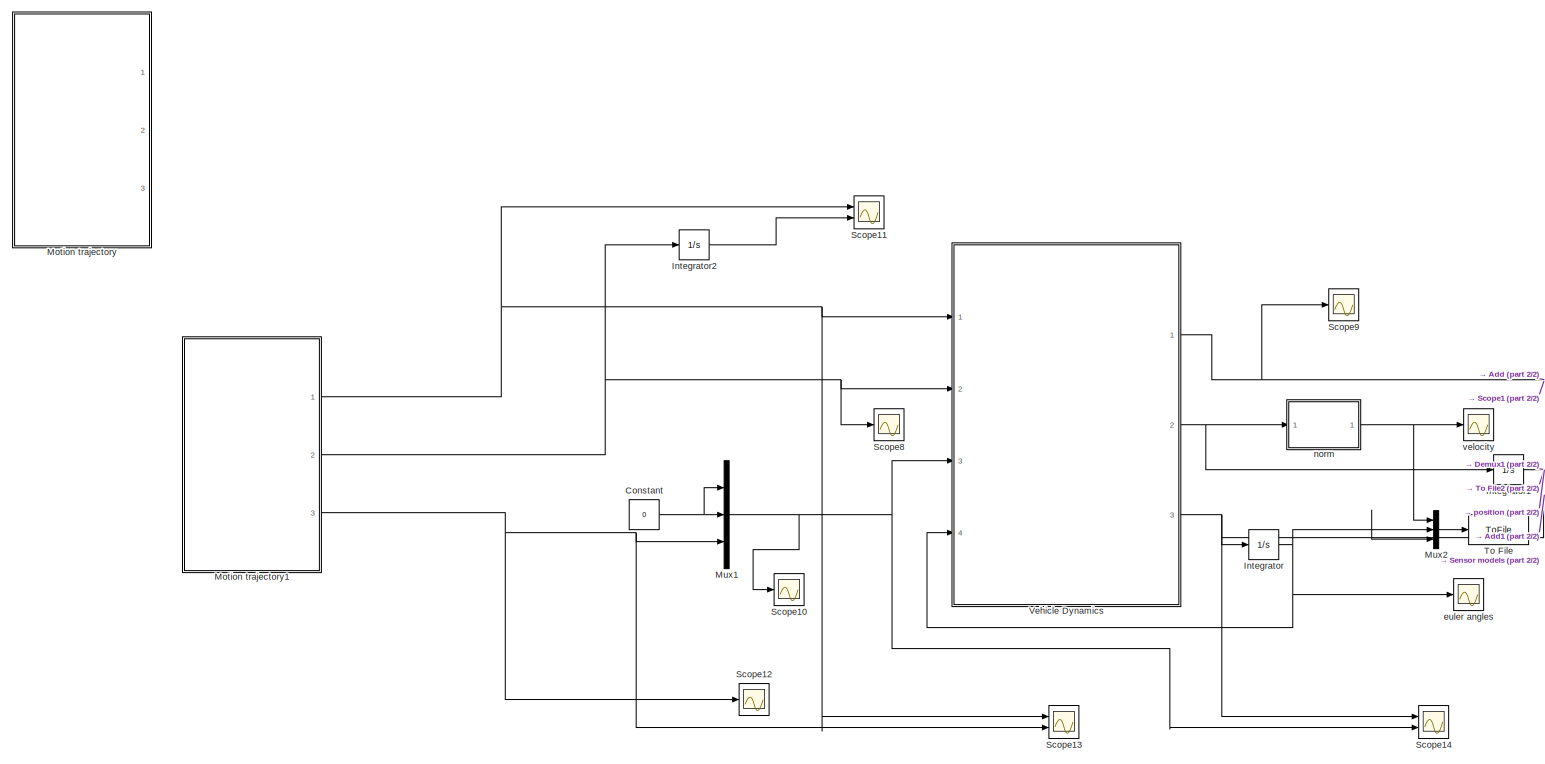
[diagram: root canvas - part 1/2, left side, full height]
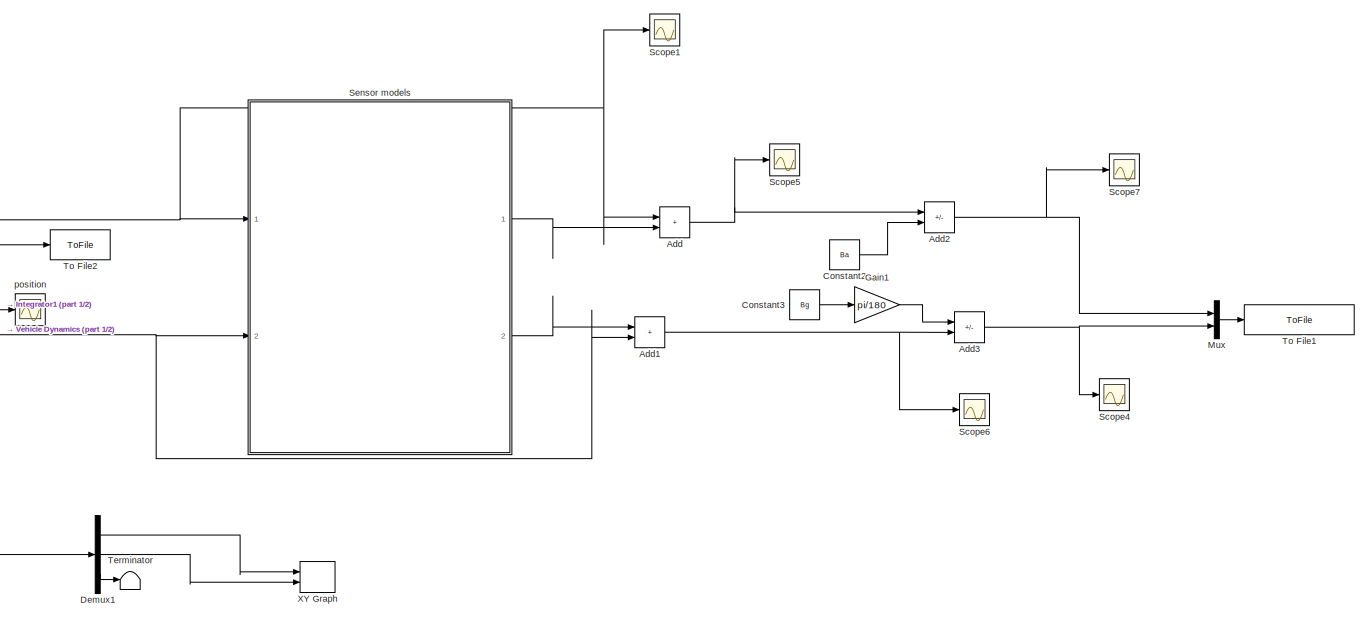
[diagram: root canvas - part 2/2, right side, full height]
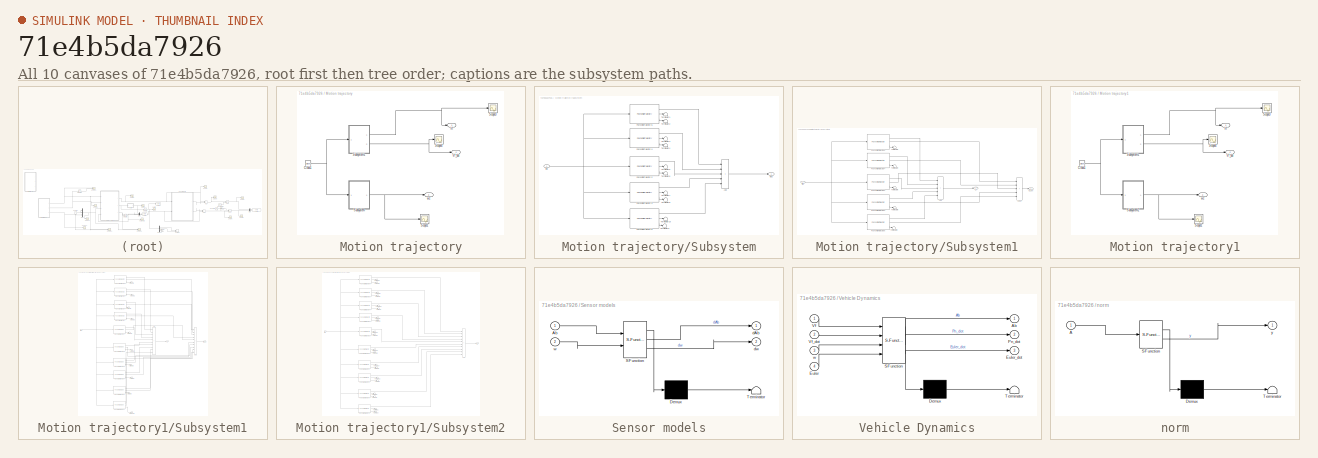
[diagram: thumbnail index - all 10 canvases of the model, root first then tree order]
MODEL slx_71e4b5da7926
KIND model
CONFIG AbsTol = auto
CONFIG EnableMultiTasking = off
CONFIG FixedStep = 1e-2
CONFIG MaxStep = 1e-1
CONFIG MinStep = auto
CONFIG RelTol = 1e-2
CONFIG SampleTimeConstraint = Unconstrained
CONFIG SolverName = FixedStepAuto
CONFIG StartTime = 0.0
CONFIG StopTime = 200
BLOCK [Sum] Add
  IconShape = rectangular
  Ports = [2, 1]
BLOCK [Sum] Add1
  IconShape = rectangular
  Ports = [2, 1]
BLOCK [Sum] Add2
  IconShape = rectangular
  Inputs = +-
  Ports = [2, 1]
BLOCK [Sum] Add3
  IconShape = rectangular
  Inputs = -+
  Ports = [2, 1]
BLOCK [Constant] Constant
  Value = 0
BLOCK [Constant] Constant2
  Value = Ba
BLOCK [Constant] Constant3
  Value = Bg
BLOCK [Demux] Demux1
  Outputs = 3
  Ports = [1, 3]
BLOCK [Gain] Gain1
  Gain = pi/180
BLOCK [Integrator] Integrator
  InitialCondition = [0 0 pi/2]'
  Ports = [1, 1]
BLOCK [Integrator] Integrator1
  InitialCondition = [0 0 0]'
  Ports = [1, 1]
BLOCK [Integrator] Integrator2
  Ports = [1, 1]
BLOCK [SubSystem] Motion trajectory
  Commented = on
  Ports = [0, 3]
  RequestExecContextInheritance = off
BLOCK [Clock] Motion trajectory/Clock1
BLOCK [Scope] Motion trajectory/Scope1
  Floating = off
  NumInputPorts = 1
  Ports = [1]
  ScopeSpecificationString = Simulink.scopes.TimeScopeBlockCfg('CurrentConfiguration', extmgr.ConfigurationSet(extmgr.Configuration('Core','General UI',true),extmgr.Configuration('Core','Source UI',true),extmgr.Configuration('Sources','WiredSimulink',true,'DataLoggingVariableName','ScopeData1'),extmgr.Configuration('Visuals','Time Domain',true,'SerializedDisplays',{struct('MinYLimReal','-0.58333','MaxYLimReal','0.58333','YLab...<+1486ch>
BLOCK [Scope] Motion trajectory/Scope3
  Floating = off
  NumInputPorts = 1
  Ports = [1]
  ScopeSpecificationString = Simulink.scopes.TimeScopeBlockCfg('CurrentConfiguration', extmgr.ConfigurationSet(extmgr.Configuration('Core','General UI',true),extmgr.Configuration('Core','Source UI',true),extmgr.Configuration('Sources','WiredSimulink',true,'DataLoggingVariableName','ScopeData1'),extmgr.Configuration('Visuals','Time Domain',true,'SerializedDisplays',{struct('MinYLimReal','-0.07997','MaxYLimReal','0.11207','YLab...<+1489ch>
BLOCK [Scope] Motion trajectory/Scope4
  Floating = off
  NumInputPorts = 1
  Ports = [1]
  ScopeSpecificationString = Simulink.scopes.TimeScopeBlockCfg('CurrentConfiguration', extmgr.ConfigurationSet(extmgr.Configuration('Core','General UI',true),extmgr.Configuration('Core','Source UI',true),extmgr.Configuration('Sources','WiredSimulink',true,'DataLoggingVariableName','ScopeData2'),extmgr.Configuration('Visuals','Time Domain',true,'SerializedDisplays',{struct('MinYLimReal','-3.44501','MaxYLimReal','3.58278','YLab...<+1501ch>
BLOCK [SubSystem] Motion trajectory/Subsystem
  Ports = [1, 1]
  RequestExecContextInheritance = off
BLOCK [Sum] Motion trajectory/Subsystem/Add
  IconShape = rectangular
  Inputs = +++++
  Ports = [5, 1]
BLOCK [Reference] Motion trajectory/Subsystem/Polynomial Trajectory2  REF=robotcorelib/Polynomial Trajectory
  Ports = [1, 3]
  SourceBlock = robotcorelib/Polynomial Trajectory
  SourceProductBaseCode = NV,RO,RR,UV
  SourceType = robotics.slcore.internal.block.PolyTrajSys
BLOCK [Reference] Motion trajectory/Subsystem/Polynomial Trajectory3  REF=robotcorelib/Polynomial Trajectory
  Ports = [1, 3]
  SourceBlock = robotcorelib/Polynomial Trajectory
  SourceProductBaseCode = NV,RO,RR,UV
  SourceType = robotics.slcore.internal.block.PolyTrajSys
BLOCK [Reference] Motion trajectory/Subsystem/Polynomial Trajectory4  REF=robotcorelib/Polynomial Trajectory
  Ports = [1, 3]
  SourceBlock = robotcorelib/Polynomial Trajectory
  SourceProductBaseCode = NV,RO,RR,UV
  SourceType = robotics.slcore.internal.block.PolyTrajSys
BLOCK [Reference] Motion trajectory/Subsystem/Polynomial Trajectory5  REF=robotcorelib/Polynomial Trajectory
  Ports = [1, 3]
  SourceBlock = robotcorelib/Polynomial Trajectory
  SourceProductBaseCode = NV,RO,RR,UV
  SourceType = robotics.slcore.internal.block.PolyTrajSys
BLOCK [Reference] Motion trajectory/Subsystem/Polynomial Trajectory6  REF=robotcorelib/Polynomial Trajectory
  Ports = [1, 3]
  SourceBlock = robotcorelib/Polynomial Trajectory
  SourceProductBaseCode = NV,RO,RR,UV
  SourceType = robotics.slcore.internal.block.PolyTrajSys
BLOCK [Terminator] Motion trajectory/Subsystem/Terminator1
BLOCK [Terminator] Motion trajectory/Subsystem/Terminator10
BLOCK [Terminator] Motion trajectory/Subsystem/Terminator2
BLOCK [Terminator] Motion trajectory/Subsystem/Terminator3
BLOCK [Terminator] Motion trajectory/Subsystem/Terminator4
BLOCK [Terminator] Motion trajectory/Subsystem/Terminator5
BLOCK [Terminator] Motion trajectory/Subsystem/Terminator6
BLOCK [Terminator] Motion trajectory/Subsystem/Terminator7
BLOCK [Terminator] Motion trajectory/Subsystem/Terminator8
BLOCK [Terminator] Motion trajectory/Subsystem/Terminator9
BLOCK [Inport] Motion trajectory/Subsystem/time
BLOCK [Outport] Motion trajectory/Subsystem/wbz
BLOCK [SubSystem] Motion trajectory/Subsystem1
  Ports = [1, 2]
  RequestExecContextInheritance = off
BLOCK [Sum] Motion trajectory/Subsystem1/Add
  IconShape = rectangular
  Inputs = +++++
  Ports = [5, 1]
BLOCK [Sum] Motion trajectory/Subsystem1/Add1
  IconShape = rectangular
  Inputs = +++++
  Ports = [5, 1]
BLOCK [Reference] Motion trajectory/Subsystem1/Polynomial Trajectory2  REF=robotcorelib/Polynomial Trajectory
  Ports = [1, 3]
  SourceBlock = robotcorelib/Polynomial Trajectory
  SourceProductBaseCode = NV,RO,RR,UV
  SourceType = robotics.slcore.internal.block.PolyTrajSys
BLOCK [Reference] Motion trajectory/Subsystem1/Polynomial Trajectory3  REF=robotcorelib/Polynomial Trajectory
  Ports = [1, 3]
  SourceBlock = robotcorelib/Polynomial Trajectory
  SourceProductBaseCode = NV,RO,RR,UV
  SourceType = robotics.slcore.internal.block.PolyTrajSys
BLOCK [Reference] Motion trajectory/Subsystem1/Polynomial Trajectory4  REF=robotcorelib/Polynomial Trajectory
  Ports = [1, 3]
  SourceBlock = robotcorelib/Polynomial Trajectory
  SourceProductBaseCode = NV,RO,RR,UV
  SourceType = robotics.slcore.internal.block.PolyTrajSys
BLOCK [Reference] Motion trajectory/Subsystem1/Polynomial Trajectory5  REF=robotcorelib/Polynomial Trajectory
  Ports = [1, 3]
  SourceBlock = robotcorelib/Polynomial Trajectory
  SourceProductBaseCode = NV,RO,RR,UV
  SourceType = robotics.slcore.internal.block.PolyTrajSys
BLOCK [Reference] Motion trajectory/Subsystem1/Polynomial Trajectory6  REF=robotcorelib/Polynomial Trajectory
  Ports = [1, 3]
  SourceBlock = robotcorelib/Polynomial Trajectory
  SourceProductBaseCode = NV,RO,RR,UV
  SourceType = robotics.slcore.internal.block.PolyTrajSys
BLOCK [Terminator] Motion trajectory/Subsystem1/Terminator2
BLOCK [Terminator] Motion trajectory/Subsystem1/Terminator4
BLOCK [Terminator] Motion trajectory/Subsystem1/Terminator6
BLOCK [Terminator] Motion trajectory/Subsystem1/Terminator8
BLOCK [Terminator] Motion trajectory/Subsystem1/Terminator9
BLOCK [Outport] Motion trajectory/Subsystem1/Vf
BLOCK [Outport] Motion trajectory/Subsystem1/Vf_dot
  Port = 2
BLOCK [Inport] Motion trajectory/Subsystem1/time
BLOCK [Outport] Motion trajectory/Vf
BLOCK [Outport] Motion trajectory/Vf_dot
  Port = 2
BLOCK [Outport] Motion trajectory/wz
  Port = 3
BLOCK [SubSystem] Motion trajectory1
  Ports = [0, 3]
  RequestExecContextInheritance = off
BLOCK [Clock] Motion trajectory1/Clock1
BLOCK [Scope] Motion trajectory1/Scope1
  Floating = off
  NumInputPorts = 1
  Ports = [1]
  ScopeSpecificationString = Simulink.scopes.TimeScopeBlockCfg('CurrentConfiguration', extmgr.ConfigurationSet(extmgr.Configuration('Core','General UI',true),extmgr.Configuration('Core','Source UI',true),extmgr.Configuration('Sources','WiredSimulink',true,'DataLoggingVariableName','ScopeData1'),extmgr.Configuration('Visuals','Time Domain',true,'SerializedDisplays',{struct('MinYLimReal','-0.58333','MaxYLimReal','0.58333','YLab...<+1486ch>
BLOCK [Scope] Motion trajectory1/Scope3
  Floating = off
  NumInputPorts = 1
  Ports = [1]
  ScopeSpecificationString = Simulink.scopes.TimeScopeBlockCfg('CurrentConfiguration', extmgr.ConfigurationSet(extmgr.Configuration('Core','General UI',true),extmgr.Configuration('Core','Source UI',true),extmgr.Configuration('Sources','WiredSimulink',true,'DataLoggingVariableName','ScopeData1'),extmgr.Configuration('Visuals','Time Domain',true,'SerializedDisplays',{struct('MinYLimReal','-1.01629','MaxYLimReal','9.14659','YLab...<+1489ch>
BLOCK [Scope] Motion trajectory1/Scope4
  Floating = off
  NumInputPorts = 1
  Ports = [1]
  ScopeSpecificationString = Simulink.scopes.TimeScopeBlockCfg('CurrentConfiguration', extmgr.ConfigurationSet(extmgr.Configuration('Core','General UI',true),extmgr.Configuration('Core','Source UI',true),extmgr.Configuration('Sources','WiredSimulink',true,'DataLoggingVariableName','ScopeData2'),extmgr.Configuration('Visuals','Time Domain',true,'SerializedDisplays',{struct('MinYLimReal','-3.44501','MaxYLimReal','3.58278','YLab...<+1501ch>
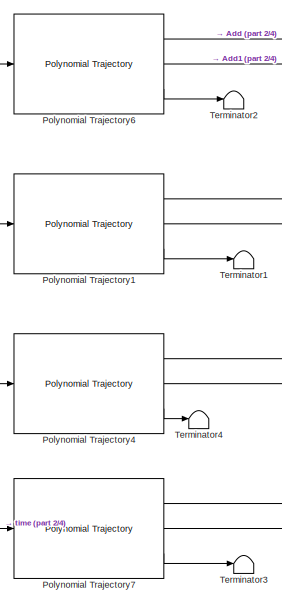
[diagram: Motion trajectory1/Subsystem1 - part 1/4, top center region]
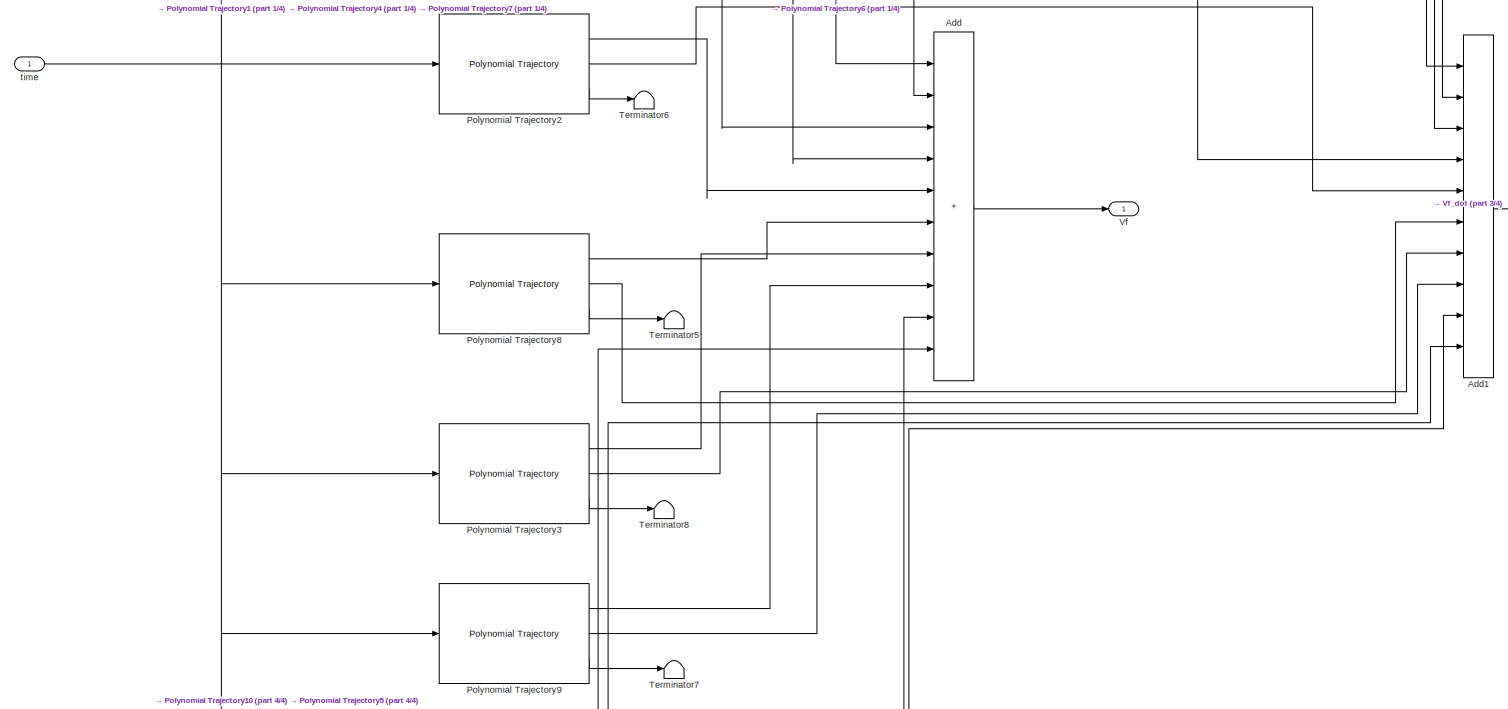
[diagram: Motion trajectory1/Subsystem1 - part 2/4, full width, middle band]
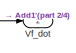
[diagram: Motion trajectory1/Subsystem1 - part 3/4, middle right region]
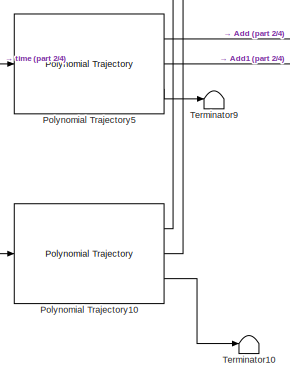
[diagram: Motion trajectory1/Subsystem1 - part 4/4, bottom center region]
BLOCK [SubSystem] Motion trajectory1/Subsystem1
  Ports = [1, 2]
  RequestExecContextInheritance = off
BLOCK [Sum] Motion trajectory1/Subsystem1/Add
  IconShape = rectangular
  Inputs = ++++++++++
  Ports = [10, 1]
BLOCK [Sum] Motion trajectory1/Subsystem1/Add1
  IconShape = rectangular
  Inputs = ++++++++++
  Ports = [10, 1]
BLOCK [Reference] Motion trajectory1/Subsystem1/Polynomial Trajectory1  REF=robotcorelib/Polynomial Trajectory
  Ports = [1, 3]
  SourceBlock = robotcorelib/Polynomial Trajectory
  SourceProductBaseCode = NV,RO,RR,UV
  SourceType = robotics.slcore.internal.block.PolyTrajSys
BLOCK [Reference] Motion trajectory1/Subsystem1/Polynomial Trajectory10  REF=robotcorelib/Polynomial Trajectory
  Ports = [1, 3]
  SourceBlock = robotcorelib/Polynomial Trajectory
  SourceProductBaseCode = NV,RO,RR,UV
  SourceType = robotics.slcore.internal.block.PolyTrajSys
BLOCK [Reference] Motion trajectory1/Subsystem1/Polynomial Trajectory2  REF=robotcorelib/Polynomial Trajectory
  Ports = [1, 3]
  SourceBlock = robotcorelib/Polynomial Trajectory
  SourceProductBaseCode = NV,RO,RR,UV
  SourceType = robotics.slcore.internal.block.PolyTrajSys
BLOCK [Reference] Motion trajectory1/Subsystem1/Polynomial Trajectory3  REF=robotcorelib/Polynomial Trajectory
  Ports = [1, 3]
  SourceBlock = robotcorelib/Polynomial Trajectory
  SourceProductBaseCode = NV,RO,RR,UV
  SourceType = robotics.slcore.internal.block.PolyTrajSys
BLOCK [Reference] Motion trajectory1/Subsystem1/Polynomial Trajectory4  REF=robotcorelib/Polynomial Trajectory
  Ports = [1, 3]
  SourceBlock = robotcorelib/Polynomial Trajectory
  SourceProductBaseCode = NV,RO,RR,UV
  SourceType = robotics.slcore.internal.block.PolyTrajSys
BLOCK [Reference] Motion trajectory1/Subsystem1/Polynomial Trajectory5  REF=robotcorelib/Polynomial Trajectory
  Ports = [1, 3]
  SourceBlock = robotcorelib/Polynomial Trajectory
  SourceProductBaseCode = NV,RO,RR,UV
  SourceType = robotics.slcore.internal.block.PolyTrajSys
BLOCK [Reference] Motion trajectory1/Subsystem1/Polynomial Trajectory6  REF=robotcorelib/Polynomial Trajectory
  Ports = [1, 3]
  SourceBlock = robotcorelib/Polynomial Trajectory
  SourceProductBaseCode = NV,RO,RR,UV
  SourceType = robotics.slcore.internal.block.PolyTrajSys
BLOCK [Reference] Motion trajectory1/Subsystem1/Polynomial Trajectory7  REF=robotcorelib/Polynomial Trajectory
  Ports = [1, 3]
  SourceBlock = robotcorelib/Polynomial Trajectory
  SourceProductBaseCode = NV,RO,RR,UV
  SourceType = robotics.slcore.internal.block.PolyTrajSys
BLOCK [Reference] Motion trajectory1/Subsystem1/Polynomial Trajectory8  REF=robotcorelib/Polynomial Trajectory
  Ports = [1, 3]
  SourceBlock = robotcorelib/Polynomial Trajectory
  SourceProductBaseCode = NV,RO,RR,UV
  SourceType = robotics.slcore.internal.block.PolyTrajSys
BLOCK [Reference] Motion trajectory1/Subsystem1/Polynomial Trajectory9  REF=robotcorelib/Polynomial Trajectory
  Ports = [1, 3]
  SourceBlock = robotcorelib/Polynomial Trajectory
  SourceProductBaseCode = NV,RO,RR,UV
  SourceType = robotics.slcore.internal.block.PolyTrajSys
BLOCK [Terminator] Motion trajectory1/Subsystem1/Terminator1
BLOCK [Terminator] Motion trajectory1/Subsystem1/Terminator10
BLOCK [Terminator] Motion trajectory1/Subsystem1/Terminator2
BLOCK [Terminator] Motion trajectory1/Subsystem1/Terminator3
BLOCK [Terminator] Motion trajectory1/Subsystem1/Terminator4
BLOCK [Terminator] Motion trajectory1/Subsystem1/Terminator5
BLOCK [Terminator] Motion trajectory1/Subsystem1/Terminator6
BLOCK [Terminator] Motion trajectory1/Subsystem1/Terminator7
BLOCK [Terminator] Motion trajectory1/Subsystem1/Terminator8
BLOCK [Terminator] Motion trajectory1/Subsystem1/Terminator9
BLOCK [Outport] Motion trajectory1/Subsystem1/Vf
BLOCK [Outport] Motion trajectory1/Subsystem1/Vf_dot
  Port = 2
BLOCK [Inport] Motion trajectory1/Subsystem1/time
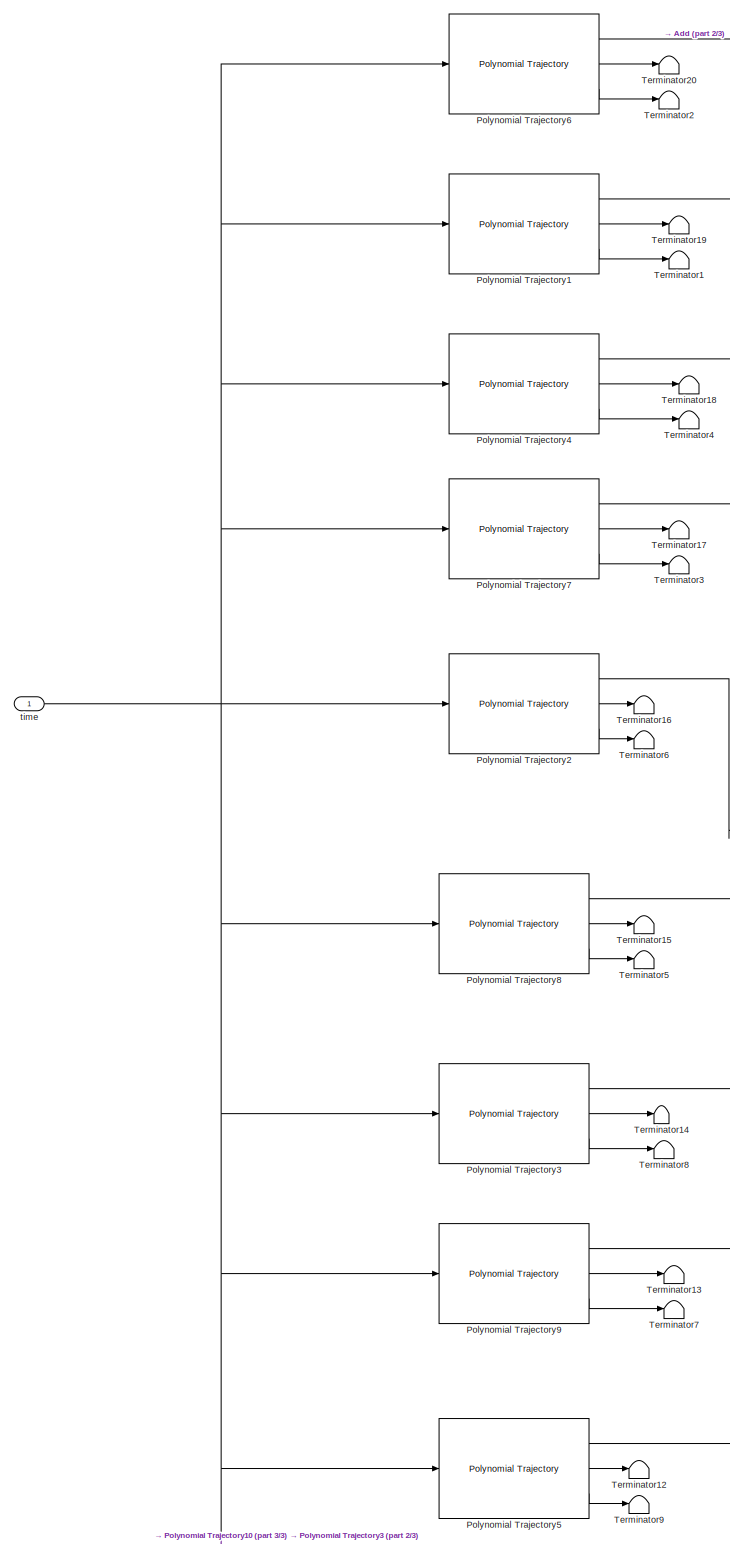
[diagram: Motion trajectory1/Subsystem2 - part 1/3, left side, full height]
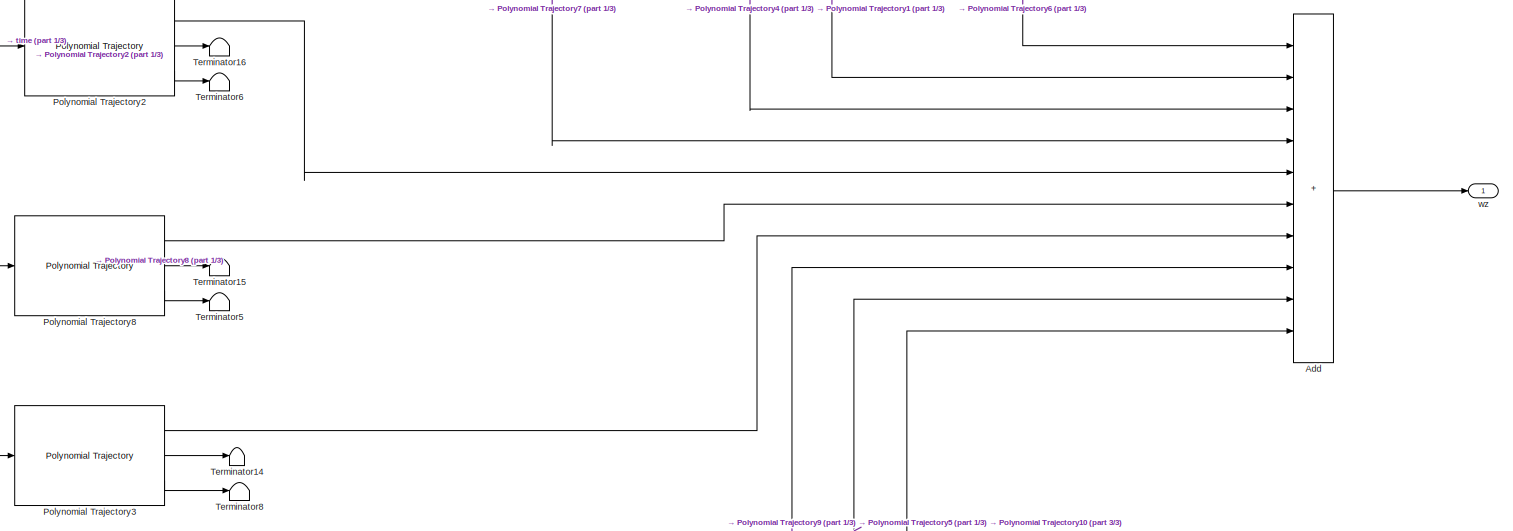
[diagram: Motion trajectory1/Subsystem2 - part 2/3, full width, middle band]
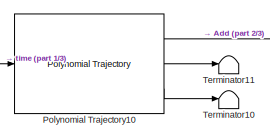
[diagram: Motion trajectory1/Subsystem2 - part 3/3, bottom left region]
BLOCK [SubSystem] Motion trajectory1/Subsystem2
  Ports = [1, 1]
  RequestExecContextInheritance = off
BLOCK [Sum] Motion trajectory1/Subsystem2/Add
  IconShape = rectangular
  Inputs = ++++++++++
  Ports = [10, 1]
BLOCK [Reference] Motion trajectory1/Subsystem2/Polynomial Trajectory1  REF=robotcorelib/Polynomial Trajectory
  Ports = [1, 3]
  SourceBlock = robotcorelib/Polynomial Trajectory
  SourceProductBaseCode = NV,RO,RR,UV
  SourceType = robotics.slcore.internal.block.PolyTrajSys
BLOCK [Reference] Motion trajectory1/Subsystem2/Polynomial Trajectory10  REF=robotcorelib/Polynomial Trajectory
  Ports = [1, 3]
  SourceBlock = robotcorelib/Polynomial Trajectory
  SourceProductBaseCode = NV,RO,RR,UV
  SourceType = robotics.slcore.internal.block.PolyTrajSys
BLOCK [Reference] Motion trajectory1/Subsystem2/Polynomial Trajectory2  REF=robotcorelib/Polynomial Trajectory
  Ports = [1, 3]
  SourceBlock = robotcorelib/Polynomial Trajectory
  SourceProductBaseCode = NV,RO,RR,UV
  SourceType = robotics.slcore.internal.block.PolyTrajSys
BLOCK [Reference] Motion trajectory1/Subsystem2/Polynomial Trajectory3  REF=robotcorelib/Polynomial Trajectory
  Ports = [1, 3]
  SourceBlock = robotcorelib/Polynomial Trajectory
  SourceProductBaseCode = NV,RO,RR,UV
  SourceType = robotics.slcore.internal.block.PolyTrajSys
BLOCK [Reference] Motion trajectory1/Subsystem2/Polynomial Trajectory4  REF=robotcorelib/Polynomial Trajectory
  Ports = [1, 3]
  SourceBlock = robotcorelib/Polynomial Trajectory
  SourceProductBaseCode = NV,RO,RR,UV
  SourceType = robotics.slcore.internal.block.PolyTrajSys
BLOCK [Reference] Motion trajectory1/Subsystem2/Polynomial Trajectory5  REF=robotcorelib/Polynomial Trajectory
  Ports = [1, 3]
  SourceBlock = robotcorelib/Polynomial Trajectory
  SourceProductBaseCode = NV,RO,RR,UV
  SourceType = robotics.slcore.internal.block.PolyTrajSys
BLOCK [Reference] Motion trajectory1/Subsystem2/Polynomial Trajectory6  REF=robotcorelib/Polynomial Trajectory
  Ports = [1, 3]
  SourceBlock = robotcorelib/Polynomial Trajectory
  SourceProductBaseCode = NV,RO,RR,UV
  SourceType = robotics.slcore.internal.block.PolyTrajSys
BLOCK [Reference] Motion trajectory1/Subsystem2/Polynomial Trajectory7  REF=robotcorelib/Polynomial Trajectory
  Ports = [1, 3]
  SourceBlock = robotcorelib/Polynomial Trajectory
  SourceProductBaseCode = NV,RO,RR,UV
  SourceType = robotics.slcore.internal.block.PolyTrajSys
BLOCK [Reference] Motion trajectory1/Subsystem2/Polynomial Trajectory8  REF=robotcorelib/Polynomial Trajectory
  Ports = [1, 3]
  SourceBlock = robotcorelib/Polynomial Trajectory
  SourceProductBaseCode = NV,RO,RR,UV
  SourceType = robotics.slcore.internal.block.PolyTrajSys
BLOCK [Reference] Motion trajectory1/Subsystem2/Polynomial Trajectory9  REF=robotcorelib/Polynomial Trajectory
  Ports = [1, 3]
  SourceBlock = robotcorelib/Polynomial Trajectory
  SourceProductBaseCode = NV,RO,RR,UV
  SourceType = robotics.slcore.internal.block.PolyTrajSys
BLOCK [Terminator] Motion trajectory1/Subsystem2/Terminator1
BLOCK [Terminator] Motion trajectory1/Subsystem2/Terminator10
BLOCK [Terminator] Motion trajectory1/Subsystem2/Terminator11
BLOCK [Terminator] Motion trajectory1/Subsystem2/Terminator12
BLOCK [Terminator] Motion trajectory1/Subsystem2/Terminator13
BLOCK [Terminator] Motion trajectory1/Subsystem2/Terminator14
BLOCK [Terminator] Motion trajectory1/Subsystem2/Terminator15
BLOCK [Terminator] Motion trajectory1/Subsystem2/Terminator16
BLOCK [Terminator] Motion trajectory1/Subsystem2/Terminator17
BLOCK [Terminator] Motion trajectory1/Subsystem2/Terminator18
BLOCK [Terminator] Motion trajectory1/Subsystem2/Terminator19
BLOCK [Terminator] Motion trajectory1/Subsystem2/Terminator2
BLOCK [Terminator] Motion trajectory1/Subsystem2/Terminator20
BLOCK [Terminator] Motion trajectory1/Subsystem2/Terminator3
BLOCK [Terminator] Motion trajectory1/Subsystem2/Terminator4
BLOCK [Terminator] Motion trajectory1/Subsystem2/Terminator5
BLOCK [Terminator] Motion trajectory1/Subsystem2/Terminator6
BLOCK [Terminator] Motion trajectory1/Subsystem2/Terminator7
BLOCK [Terminator] Motion trajectory1/Subsystem2/Terminator8
BLOCK [Terminator] Motion trajectory1/Subsystem2/Terminator9
BLOCK [Inport] Motion trajectory1/Subsystem2/time
BLOCK [Outport] Motion trajectory1/Subsystem2/wz
BLOCK [Outport] Motion trajectory1/Vf
BLOCK [Outport] Motion trajectory1/Vf_dot
  Port = 2
BLOCK [Outport] Motion trajectory1/wz
  Port = 3
BLOCK [Mux] Mux
  DisplayOption = bar
  Inputs = 2
  Ports = [2, 1]
BLOCK [Mux] Mux1
  DisplayOption = bar
  Inputs = 3
  Ports = [3, 1]
BLOCK [Mux] Mux2
  DisplayOption = bar
  Inputs = 3
  Ports = [3, 1]
BLOCK [Scope] Scope1
  Floating = off
  NumInputPorts = 1
  Ports = [1]
  ScopeSpecificationString = Simulink.scopes.TimeScopeBlockCfg('CurrentConfiguration', extmgr.ConfigurationSet(extmgr.Configuration('Core','General UI',true),extmgr.Configuration('Core','Source UI',true),extmgr.Configuration('Sources','WiredSimulink',true,'DataLoggingVariableName','ScopeData1'),extmgr.Configuration('Visuals','Time Domain',true,'SerializedDisplays',{struct('MinYLimReal','-11.31317','MaxYLimReal','3.71856','YLa...<+1449ch>
BLOCK [Scope] Scope10
  Floating = off
  NumInputPorts = 1
  Ports = [1]
  ScopeSpecificationString = Simulink.scopes.TimeScopeBlockCfg('CurrentConfiguration', extmgr.ConfigurationSet(extmgr.Configuration('Core','General UI',true),extmgr.Configuration('Core','Source UI',true),extmgr.Configuration('Sources','WiredSimulink',true,'DataLoggingVariableName','ScopeData3'),extmgr.Configuration('Visuals','Time Domain',true,'SerializedDisplays',{struct('MinYLimReal','-0.45','MaxYLimReal','0.05','YLabelReal...<+1380ch>
BLOCK [Scope] Scope11
  Floating = off
  NumInputPorts = 2
  Ports = [2]
  ScopeSpecificationString = Simulink.scopes.TimeScopeBlockCfg('CurrentConfiguration', extmgr.ConfigurationSet(extmgr.Configuration('Core','General UI',true),extmgr.Configuration('Core','Source UI',true),extmgr.Configuration('Sources','WiredSimulink',true,'DataLoggingVariableName','ScopeData3'),extmgr.Configuration('Visuals','Time Domain',true,'SerializedDisplays',{struct('MinYLimReal','-1.03948','MaxYLimReal','9.35531','YLab...<+1465ch>
BLOCK [Scope] Scope12
  Floating = off
  NumInputPorts = 1
  Ports = [1]
  ScopeSpecificationString = Simulink.scopes.TimeScopeBlockCfg('CurrentConfiguration', extmgr.ConfigurationSet(extmgr.Configuration('Core','General UI',true),extmgr.Configuration('Core','Source UI',true),extmgr.Configuration('Sources','WiredSimulink',true,'DataLoggingVariableName','ScopeData1'),extmgr.Configuration('Visuals','Time Domain',true,'SerializedDisplays',{struct('MinYLimReal','-0.10908','MaxYLimReal','0.10908','YLab...<+1362ch>
BLOCK [Scope] Scope13
  Floating = off
  NumInputPorts = 2
  Ports = [2]
  ScopeSpecificationString = Simulink.scopes.TimeScopeBlockCfg('CurrentConfiguration', extmgr.ConfigurationSet(extmgr.Configuration('Core','General UI',true),extmgr.Configuration('Core','Source UI',true),extmgr.Configuration('Sources','WiredSimulink',true,'DataLoggingVariableName','ScopeData1'),extmgr.Configuration('Visuals','Time Domain',true,'SerializedDisplays',{struct('MinYLimReal','-1','MaxYLimReal','12','YLabelReal','',...<+1485ch>
BLOCK [Scope] Scope14
  Floating = off
  NumInputPorts = 2
  Ports = [2]
  ScopeSpecificationString = Simulink.scopes.TimeScopeBlockCfg('CurrentConfiguration', extmgr.ConfigurationSet(extmgr.Configuration('Core','General UI',true),extmgr.Configuration('Core','Source UI',true),extmgr.Configuration('Sources','WiredSimulink',true,'DataLoggingVariableName','ScopeData1'),extmgr.Configuration('Visuals','Time Domain',true,'SerializedDisplays',{struct('MinYLimReal','-0.58333','MaxYLimReal','0.58333','YLab...<+1706ch>
BLOCK [Scope] Scope4
  Floating = off
  NumInputPorts = 1
  Ports = [1]
  ScopeSpecificationString = Simulink.scopes.TimeScopeBlockCfg('CurrentConfiguration', extmgr.ConfigurationSet(extmgr.Configuration('Core','General UI',true),extmgr.Configuration('Core','Source UI',true),extmgr.Configuration('Sources','WiredSimulink',true,'DataLoggingVariableName','ScopeData1'),extmgr.Configuration('Visuals','Time Domain',true,'SerializedDisplays',{struct('MinYLimReal','-0.61104','MaxYLimReal','0.61576','YLab...<+1522ch>
BLOCK [Scope] Scope5
  Floating = off
  NumInputPorts = 1
  Ports = [1]
  ScopeSpecificationString = Simulink.scopes.TimeScopeBlockCfg('CurrentConfiguration', extmgr.ConfigurationSet(extmgr.Configuration('Core','General UI',true),extmgr.Configuration('Core','Source UI',true),extmgr.Configuration('Sources','WiredSimulink',true,'DataLoggingVariableName','ScopeData5'),extmgr.Configuration('Visuals','Time Domain',true,'SerializedDisplays',{struct('MinYLimReal','-11.79048','MaxYLimReal','5.38301','YLa...<+1494ch>
BLOCK [Scope] Scope6
  Floating = off
  NumInputPorts = 1
  Ports = [1]
  ScopeSpecificationString = Simulink.scopes.TimeScopeBlockCfg('CurrentConfiguration', extmgr.ConfigurationSet(extmgr.Configuration('Core','General UI',true),extmgr.Configuration('Core','Source UI',true),extmgr.Configuration('Sources','WiredSimulink',true,'DataLoggingVariableName','ScopeData6'),extmgr.Configuration('Visuals','Time Domain',true,'SerializedDisplays',{struct('MinYLimReal','-0.52377','MaxYLimReal','0.70302','YLab...<+1439ch>
BLOCK [Scope] Scope7
  Floating = off
  NumInputPorts = 1
  Ports = [1]
  ScopeSpecificationString = Simulink.scopes.TimeScopeBlockCfg('CurrentConfiguration', extmgr.ConfigurationSet(extmgr.Configuration('Core','General UI',true),extmgr.Configuration('Core','Source UI',true),extmgr.Configuration('Sources','WiredSimulink',true,'DataLoggingVariableName','ScopeData1'),extmgr.Configuration('Visuals','Time Domain',true,'SerializedDisplays',{struct('MinYLimReal','-11.82603','MaxYLimReal','5.3776','YLab...<+1524ch>
BLOCK [Scope] Scope8
  Floating = off
  NumInputPorts = 1
  Ports = [1]
  ScopeSpecificationString = Simulink.scopes.TimeScopeBlockCfg('CurrentConfiguration', extmgr.ConfigurationSet(extmgr.Configuration('Core','General UI',true),extmgr.Configuration('Core','Source UI',true),extmgr.Configuration('Sources','WiredSimulink',true,'DataLoggingVariableName','ScopeData1'),extmgr.Configuration('Visuals','Time Domain',true,'SerializedDisplays',{struct('MinYLimReal','-2.71563','MaxYLimReal','2.76327','YLab...<+1377ch>
BLOCK [Scope] Scope9
  Floating = off
  NumInputPorts = 1
  Ports = [1]
  ScopeSpecificationString = Simulink.scopes.TimeScopeBlockCfg('CurrentConfiguration', extmgr.ConfigurationSet(extmgr.Configuration('Core','General UI',true),extmgr.Configuration('Core','Source UI',true),extmgr.Configuration('Sources','WiredSimulink',true,'DataLoggingVariableName','ScopeData7'),extmgr.Configuration('Visuals','Time Domain',true,'SerializedDisplays',{struct('MinYLimReal','-11.31317','MaxYLimReal','3.71856','YLa...<+1484ch>
BLOCK [SubSystem] Sensor models
  ErrorFcn = Stateflow.Translate.translate
  PermitHierarchicalResolution = ExplicitOnly
  Ports = [2, 2]
  RequestExecContextInheritance = off
  SFBlockType = MATLAB Function
  TreatAsAtomicUnit = on
BLOCK [Demux] Sensor models/ Demux 
  Outputs = 1
  Ports = [1, 1]
BLOCK [S-Function] Sensor models/ SFunction 
  EnableBusSupport = on
  FunctionName = sf_sfun
  PortCounts = [2 3]
  Ports = [2, 3]
  SFcnIsStateOwnerBlock = off
  SFunctionDeploymentMode = off
  Tag = Stateflow S-Function 1
BLOCK [Terminator] Sensor models/ Terminator 
BLOCK [Inport] Sensor models/Ab
BLOCK [Outport] Sensor models/dAb
BLOCK [Outport] Sensor models/dw
  Port = 2
BLOCK [Inport] Sensor models/w
  Port = 2
BLOCK [Terminator] Terminator
BLOCK [ToFile] To File
  Filename = riferimenti.mat
  MatrixName = ground_truth
  Ports = [1]
BLOCK [ToFile] To File1
  Filename = Measure_collection.mat
  MatrixName = measure
  Ports = [1]
BLOCK [ToFile] To File2
  Filename = True_trajectory.mat
  MatrixName = true_traj
  Ports = [1]
BLOCK [SubSystem] Vehicle Dynamics
  ErrorFcn = Stateflow.Translate.translate
  PermitHierarchicalResolution = ExplicitOnly
  Ports = [4, 3]
  RequestExecContextInheritance = off
  SFBlockType = MATLAB Function
  TreatAsAtomicUnit = on
BLOCK [Demux] Vehicle Dynamics/ Demux 
  Outputs = 1
  Ports = [1, 1]
BLOCK [S-Function] Vehicle Dynamics/ SFunction 
  EnableBusSupport = on
  FunctionName = sf_sfun
  PortCounts = [4 4]
  Ports = [4, 4]
  SFcnIsStateOwnerBlock = off
  SFunctionDeploymentMode = off
  Tag = Stateflow S-Function 2
BLOCK [Terminator] Vehicle Dynamics/ Terminator 
BLOCK [Outport] Vehicle Dynamics/Ab
BLOCK [Inport] Vehicle Dynamics/Euler
  Port = 4
BLOCK [Outport] Vehicle Dynamics/Euler_dot
  Port = 3
BLOCK [Outport] Vehicle Dynamics/Pn_dot
  Port = 2
BLOCK [Inport] Vehicle Dynamics/Vf
BLOCK [Inport] Vehicle Dynamics/Vf_dot
  Port = 2
BLOCK [Inport] Vehicle Dynamics/w
  Port = 3
BLOCK [Record] XY Graph
  CompatibilityTag = XY
  FileSettingsInternal = {"entries":[{"content":{"excelSettings":{"content":{},"type":"Streamout.ExcelSettings"}},"type":"Streamout.FileSettingStorage","uuid":"2ffef6f6-1932-4a3d-900c-cae5f64caec0"}],"packageUris":["http://schema.mathworks.com/mf0/streamout_blocks/R2020a"],"version":"1.0"}
  Layout = [1 1]
  Ports = [2]
  SignalsInternal = {"entries":[{"content":{"signals":[{"content":{"blockPath":["Measure_collection_Vf_W/XY Graph"],"channel":[],"dimensions":[1,1],"domain":"Measure_collection_Vf_W/XY Graph","lineColor":"#ff6929","plots":[],"port":1,"sid":[],"signalID":60470,"signalName":"Demux1:1"},"type":"RecordBlkView.Signal","uuid":"729552a8-1bb1-4b6e-8994-e2218eae4b44"},{"content":{"blockPath":["Measure_collection_Vf_W/XY Graph...<+425ch>
  VisualizationBindings = {"xyplotplugin":{"info":[{"series":[],"subplotID":1}]}}
BLOCK [Scope] euler angles
  Floating = off
  NumInputPorts = 1
  Ports = [1]
  ScopeSpecificationString = Simulink.scopes.TimeScopeBlockCfg('CurrentConfiguration', extmgr.ConfigurationSet(extmgr.Configuration('Core','General UI',true),extmgr.Configuration('Core','Source UI',true),extmgr.Configuration('Sources','WiredSimulink',true,'DataLoggingVariableName','ScopeData3'),extmgr.Configuration('Visuals','Time Domain',true,'SerializedDisplays',{struct('MinYLimReal','-5.48809','MaxYLimReal','2.35512','YLab...<+1546ch>
BLOCK [SubSystem] norm
  ErrorFcn = Stateflow.Translate.translate
  PermitHierarchicalResolution = ExplicitOnly
  Ports = [1, 1]
  RequestExecContextInheritance = off
  SFBlockType = MATLAB Function
  TreatAsAtomicUnit = on
BLOCK [Demux] norm/ Demux 
  Outputs = 1
  Ports = [1, 1]
BLOCK [S-Function] norm/ SFunction 
  EnableBusSupport = on
  FunctionName = sf_sfun
  PortCounts = [1 2]
  Ports = [1, 2]
  SFcnIsStateOwnerBlock = off
  SFunctionDeploymentMode = off
  Tag = Stateflow S-Function 9
BLOCK [Terminator] norm/ Terminator 
BLOCK [Inport] norm/A
BLOCK [Outport] norm/y
BLOCK [Scope] position
  Floating = off
  NumInputPorts = 1
  Ports = [1]
  ScopeSpecificationString = Simulink.scopes.TimeScopeBlockCfg('CurrentConfiguration', extmgr.ConfigurationSet(extmgr.Configuration('Core','General UI',true),extmgr.Configuration('Core','Source UI',true),extmgr.Configuration('Sources','WiredSimulink',true,'DataLoggingVariableName','ScopeData2'),extmgr.Configuration('Visuals','Time Domain',true,'SerializedDisplays',{struct('MinYLimReal','-37.69097','MaxYLimReal','110.21408','Y...<+1513ch>
BLOCK [Scope] velocity
  Floating = off
  NumInputPorts = 1
  Ports = [1]
  ScopeSpecificationString = Simulink.scopes.TimeScopeBlockCfg('CurrentConfiguration', extmgr.ConfigurationSet(extmgr.Configuration('Core','General UI',true),extmgr.Configuration('Core','Source UI',true),extmgr.Configuration('Sources','WiredSimulink',true,'DataLoggingVariableName','ScopeData2'),extmgr.Configuration('Visuals','Time Domain',true,'SerializedDisplays',{struct('MinYLimReal','-1.03948','MaxYLimReal','9.35531','YLab...<+1509ch>
NET Add1:1 -> Add3:2, Scope6:1
NET Add2:1 -> Mux:1, Scope7:1
NET Add3:1 -> Mux:2, Scope4:1
NET Add:1 -> Add2:1, Scope5:1
LINE Constant2:1 -> Add2:2
LINE Constant3:1 -> Gain1:1
NET Constant:1 -> Mux1:1, Mux1:2
LINE Demux1:1 -> XY Graph:1
LINE Demux1:2 -> XY Graph:2
LINE Demux1:3 -> Terminator:1
LINE Gain1:1 -> Add3:1
NET Integrator1:1 -> Demux1:1, To File2:1, position:1
LINE Integrator2:1 -> Scope11:2
NET Integrator:1 -> Mux2:2, Vehicle Dynamics:4, euler angles:1
NET Motion trajectory/Clock1:1 -> Motion trajectory/Subsystem1:1, Motion trajectory/Subsystem:1
LINE Motion trajectory/Subsystem/Add:1 -> Motion trajectory/Subsystem/wbz:1
LINE Motion trajectory/Subsystem/Polynomial Trajectory2:1 -> Motion trajectory/Subsystem/Add:3
LINE Motion trajectory/Subsystem/Polynomial Trajectory2:2 -> Motion trajectory/Subsystem/Terminator5:1
LINE Motion trajectory/Subsystem/Polynomial Trajectory2:3 -> Motion trajectory/Subsystem/Terminator6:1
LINE Motion trajectory/Subsystem/Polynomial Trajectory3:1 -> Motion trajectory/Subsystem/Add:4
LINE Motion trajectory/Subsystem/Polynomial Trajectory3:2 -> Motion trajectory/Subsystem/Terminator7:1
LINE Motion trajectory/Subsystem/Polynomial Trajectory3:3 -> Motion trajectory/Subsystem/Terminator8:1
LINE Motion trajectory/Subsystem/Polynomial Trajectory4:1 -> Motion trajectory/Subsystem/Add:2
LINE Motion trajectory/Subsystem/Polynomial Trajectory4:2 -> Motion trajectory/Subsystem/Terminator3:1
LINE Motion trajectory/Subsystem/Polynomial Trajectory4:3 -> Motion trajectory/Subsystem/Terminator4:1
LINE Motion trajectory/Subsystem/Polynomial Trajectory5:1 -> Motion trajectory/Subsystem/Add:5
LINE Motion trajectory/Subsystem/Polynomial Trajectory5:2 -> Motion trajectory/Subsystem/Terminator10:1
LINE Motion trajectory/Subsystem/Polynomial Trajectory5:3 -> Motion trajectory/Subsystem/Terminator9:1
LINE Motion trajectory/Subsystem/Polynomial Trajectory6:1 -> Motion trajectory/Subsystem/Add:1
LINE Motion trajectory/Subsystem/Polynomial Trajectory6:2 -> Motion trajectory/Subsystem/Terminator1:1
LINE Motion trajectory/Subsystem/Polynomial Trajectory6:3 -> Motion trajectory/Subsystem/Terminator2:1
NET Motion trajectory/Subsystem/time:1 -> Motion trajectory/Subsystem/Polynomial Trajectory2:1, Motion trajectory/Subsystem/Polynomial Trajectory3:1, Motion trajectory/Subsystem/Polynomial Trajectory4:1, Motion trajectory/Subsystem/Polynomial Trajectory5:1, Motion trajectory/Subsystem/Polynomial Trajectory6:1
LINE Motion trajectory/Subsystem1/Add1:1 -> Motion trajectory/Subsystem1/Vf_dot:1
LINE Motion trajectory/Subsystem1/Add:1 -> Motion trajectory/Subsystem1/Vf:1
LINE Motion trajectory/Subsystem1/Polynomial Trajectory2:1 -> Motion trajectory/Subsystem1/Add:3
LINE Motion trajectory/Subsystem1/Polynomial Trajectory2:2 -> Motion trajectory/Subsystem1/Add1:3
LINE Motion trajectory/Subsystem1/Polynomial Trajectory2:3 -> Motion trajectory/Subsystem1/Terminator6:1
LINE Motion trajectory/Subsystem1/Polynomial Trajectory3:1 -> Motion trajectory/Subsystem1/Add:4
LINE Motion trajectory/Subsystem1/Polynomial Trajectory3:2 -> Motion trajectory/Subsystem1/Add1:4
LINE Motion trajectory/Subsystem1/Polynomial Trajectory3:3 -> Motion trajectory/Subsystem1/Terminator8:1
LINE Motion trajectory/Subsystem1/Polynomial Trajectory4:1 -> Motion trajectory/Subsystem1/Add:2
LINE Motion trajectory/Subsystem1/Polynomial Trajectory4:2 -> Motion trajectory/Subsystem1/Add1:2
LINE Motion trajectory/Subsystem1/Polynomial Trajectory4:3 -> Motion trajectory/Subsystem1/Terminator4:1
LINE Motion trajectory/Subsystem1/Polynomial Trajectory5:1 -> Motion trajectory/Subsystem1/Add:5
LINE Motion trajectory/Subsystem1/Polynomial Trajectory5:2 -> Motion trajectory/Subsystem1/Add1:5
LINE Motion trajectory/Subsystem1/Polynomial Trajectory5:3 -> Motion trajectory/Subsystem1/Terminator9:1
LINE Motion trajectory/Subsystem1/Polynomial Trajectory6:1 -> Motion trajectory/Subsystem1/Add:1
LINE Motion trajectory/Subsystem1/Polynomial Trajectory6:2 -> Motion trajectory/Subsystem1/Add1:1
LINE Motion trajectory/Subsystem1/Polynomial Trajectory6:3 -> Motion trajectory/Subsystem1/Terminator2:1
NET Motion trajectory/Subsystem1/time:1 -> Motion trajectory/Subsystem1/Polynomial Trajectory2:1, Motion trajectory/Subsystem1/Polynomial Trajectory3:1, Motion trajectory/Subsystem1/Polynomial Trajectory4:1, Motion trajectory/Subsystem1/Polynomial Trajectory5:1, Motion trajectory/Subsystem1/Polynomial Trajectory6:1
NET Motion trajectory/Subsystem1:1 -> Motion trajectory/Scope3:1, Motion trajectory/Vf:1
NET Motion trajectory/Subsystem1:2 -> Motion trajectory/Scope4:1, Motion trajectory/Vf_dot:1
NET Motion trajectory/Subsystem:1 -> Motion trajectory/Scope1:1, Motion trajectory/wz:1
NET Motion trajectory1/Clock1:1 -> Motion trajectory1/Subsystem1:1, Motion trajectory1/Subsystem2:1
LINE Motion trajectory1/Subsystem1/Add1:1 -> Motion trajectory1/Subsystem1/Vf_dot:1
LINE Motion trajectory1/Subsystem1/Add:1 -> Motion trajectory1/Subsystem1/Vf:1
LINE Motion trajectory1/Subsystem1/Polynomial Trajectory10:1 -> Motion trajectory1/Subsystem1/Add:10
LINE Motion trajectory1/Subsystem1/Polynomial Trajectory10:2 -> Motion trajectory1/Subsystem1/Add1:10
LINE Motion trajectory1/Subsystem1/Polynomial Trajectory10:3 -> Motion trajectory1/Subsystem1/Terminator10:1
LINE Motion trajectory1/Subsystem1/Polynomial Trajectory1:1 -> Motion trajectory1/Subsystem1/Add:2
LINE Motion trajectory1/Subsystem1/Polynomial Trajectory1:2 -> Motion trajectory1/Subsystem1/Add1:2
LINE Motion trajectory1/Subsystem1/Polynomial Trajectory1:3 -> Motion trajectory1/Subsystem1/Terminator1:1
LINE Motion trajectory1/Subsystem1/Polynomial Trajectory2:1 -> Motion trajectory1/Subsystem1/Add:5
LINE Motion trajectory1/Subsystem1/Polynomial Trajectory2:2 -> Motion trajectory1/Subsystem1/Add1:5
LINE Motion trajectory1/Subsystem1/Polynomial Trajectory2:3 -> Motion trajectory1/Subsystem1/Terminator6:1
LINE Motion trajectory1/Subsystem1/Polynomial Trajectory3:1 -> Motion trajectory1/Subsystem1/Add:7
LINE Motion trajectory1/Subsystem1/Polynomial Trajectory3:2 -> Motion trajectory1/Subsystem1/Add1:7
LINE Motion trajectory1/Subsystem1/Polynomial Trajectory3:3 -> Motion trajectory1/Subsystem1/Terminator8:1
LINE Motion trajectory1/Subsystem1/Polynomial Trajectory4:1 -> Motion trajectory1/Subsystem1/Add:3
LINE Motion trajectory1/Subsystem1/Polynomial Trajectory4:2 -> Motion trajectory1/Subsystem1/Add1:3
LINE Motion trajectory1/Subsystem1/Polynomial Trajectory4:3 -> Motion trajectory1/Subsystem1/Terminator4:1
LINE Motion trajectory1/Subsystem1/Polynomial Trajectory5:1 -> Motion trajectory1/Subsystem1/Add:9
LINE Motion trajectory1/Subsystem1/Polynomial Trajectory5:2 -> Motion trajectory1/Subsystem1/Add1:9
LINE Motion trajectory1/Subsystem1/Polynomial Trajectory5:3 -> Motion trajectory1/Subsystem1/Terminator9:1
LINE Motion trajectory1/Subsystem1/Polynomial Trajectory6:1 -> Motion trajectory1/Subsystem1/Add:1
LINE Motion trajectory1/Subsystem1/Polynomial Trajectory6:2 -> Motion trajectory1/Subsystem1/Add1:1
LINE Motion trajectory1/Subsystem1/Polynomial Trajectory6:3 -> Motion trajectory1/Subsystem1/Terminator2:1
LINE Motion trajectory1/Subsystem1/Polynomial Trajectory7:1 -> Motion trajectory1/Subsystem1/Add:4
LINE Motion trajectory1/Subsystem1/Polynomial Trajectory7:2 -> Motion trajectory1/Subsystem1/Add1:4
LINE Motion trajectory1/Subsystem1/Polynomial Trajectory7:3 -> Motion trajectory1/Subsystem1/Terminator3:1
LINE Motion trajectory1/Subsystem1/Polynomial Trajectory8:1 -> Motion trajectory1/Subsystem1/Add:6
LINE Motion trajectory1/Subsystem1/Polynomial Trajectory8:2 -> Motion trajectory1/Subsystem1/Add1:6
LINE Motion trajectory1/Subsystem1/Polynomial Trajectory8:3 -> Motion trajectory1/Subsystem1/Terminator5:1
LINE Motion trajectory1/Subsystem1/Polynomial Trajectory9:1 -> Motion trajectory1/Subsystem1/Add:8
LINE Motion trajectory1/Subsystem1/Polynomial Trajectory9:2 -> Motion trajectory1/Subsystem1/Add1:8
LINE Motion trajectory1/Subsystem1/Polynomial Trajectory9:3 -> Motion trajectory1/Subsystem1/Terminator7:1
NET Motion trajectory1/Subsystem1/time:1 -> Motion trajectory1/Subsystem1/Polynomial Trajectory10:1, Motion trajectory1/Subsystem1/Polynomial Trajectory1:1, Motion trajectory1/Subsystem1/Polynomial Trajectory2:1, Motion trajectory1/Subsystem1/Polynomial Trajectory3:1, Motion trajectory1/Subsystem1/Polynomial Trajectory4:1, Motion trajectory1/Subsystem1/Polynomial Trajectory5:1, Motion trajectory1/Subsystem1/Polynomial Trajectory6:1, Motion trajectory1/Subsystem1/Polynomial Trajectory7:1, Motion trajectory1/Subsystem1/Polynomial Trajectory8:1, Motion trajectory1/Subsystem1/Polynomial Trajectory9:1
NET Motion trajectory1/Subsystem1:1 -> Motion trajectory1/Scope3:1, Motion trajectory1/Vf:1
NET Motion trajectory1/Subsystem1:2 -> Motion trajectory1/Scope4:1, Motion trajectory1/Vf_dot:1
LINE Motion trajectory1/Subsystem2/Add:1 -> Motion trajectory1/Subsystem2/wz:1
LINE Motion trajectory1/Subsystem2/Polynomial Trajectory10:1 -> Motion trajectory1/Subsystem2/Add:10
LINE Motion trajectory1/Subsystem2/Polynomial Trajectory10:2 -> Motion trajectory1/Subsystem2/Terminator11:1
LINE Motion trajectory1/Subsystem2/Polynomial Trajectory10:3 -> Motion trajectory1/Subsystem2/Terminator10:1
LINE Motion trajectory1/Subsystem2/Polynomial Trajectory1:1 -> Motion trajectory1/Subsystem2/Add:2
LINE Motion trajectory1/Subsystem2/Polynomial Trajectory1:2 -> Motion trajectory1/Subsystem2/Terminator19:1
LINE Motion trajectory1/Subsystem2/Polynomial Trajectory1:3 -> Motion trajectory1/Subsystem2/Terminator1:1
LINE Motion trajectory1/Subsystem2/Polynomial Trajectory2:1 -> Motion trajectory1/Subsystem2/Add:5
LINE Motion trajectory1/Subsystem2/Polynomial Trajectory2:2 -> Motion trajectory1/Subsystem2/Terminator16:1
LINE Motion trajectory1/Subsystem2/Polynomial Trajectory2:3 -> Motion trajectory1/Subsystem2/Terminator6:1
LINE Motion trajectory1/Subsystem2/Polynomial Trajectory3:1 -> Motion trajectory1/Subsystem2/Add:7
LINE Motion trajectory1/Subsystem2/Polynomial Trajectory3:2 -> Motion trajectory1/Subsystem2/Terminator14:1
LINE Motion trajectory1/Subsystem2/Polynomial Trajectory3:3 -> Motion trajectory1/Subsystem2/Terminator8:1
LINE Motion trajectory1/Subsystem2/Polynomial Trajectory4:1 -> Motion trajectory1/Subsystem2/Add:3
LINE Motion trajectory1/Subsystem2/Polynomial Trajectory4:2 -> Motion trajectory1/Subsystem2/Terminator18:1
LINE Motion trajectory1/Subsystem2/Polynomial Trajectory4:3 -> Motion trajectory1/Subsystem2/Terminator4:1
LINE Motion trajectory1/Subsystem2/Polynomial Trajectory5:1 -> Motion trajectory1/Subsystem2/Add:9
LINE Motion trajectory1/Subsystem2/Polynomial Trajectory5:2 -> Motion trajectory1/Subsystem2/Terminator12:1
LINE Motion trajectory1/Subsystem2/Polynomial Trajectory5:3 -> Motion trajectory1/Subsystem2/Terminator9:1
LINE Motion trajectory1/Subsystem2/Polynomial Trajectory6:1 -> Motion trajectory1/Subsystem2/Add:1
LINE Motion trajectory1/Subsystem2/Polynomial Trajectory6:2 -> Motion trajectory1/Subsystem2/Terminator20:1
LINE Motion trajectory1/Subsystem2/Polynomial Trajectory6:3 -> Motion trajectory1/Subsystem2/Terminator2:1
LINE Motion trajectory1/Subsystem2/Polynomial Trajectory7:1 -> Motion trajectory1/Subsystem2/Add:4
LINE Motion trajectory1/Subsystem2/Polynomial Trajectory7:2 -> Motion trajectory1/Subsystem2/Terminator17:1
LINE Motion trajectory1/Subsystem2/Polynomial Trajectory7:3 -> Motion trajectory1/Subsystem2/Terminator3:1
LINE Motion trajectory1/Subsystem2/Polynomial Trajectory8:1 -> Motion trajectory1/Subsystem2/Add:6
LINE Motion trajectory1/Subsystem2/Polynomial Trajectory8:2 -> Motion trajectory1/Subsystem2/Terminator15:1
LINE Motion trajectory1/Subsystem2/Polynomial Trajectory8:3 -> Motion trajectory1/Subsystem2/Terminator5:1
LINE Motion trajectory1/Subsystem2/Polynomial Trajectory9:1 -> Motion trajectory1/Subsystem2/Add:8
LINE Motion trajectory1/Subsystem2/Polynomial Trajectory9:2 -> Motion trajectory1/Subsystem2/Terminator13:1
LINE Motion trajectory1/Subsystem2/Polynomial Trajectory9:3 -> Motion trajectory1/Subsystem2/Terminator7:1
NET Motion trajectory1/Subsystem2/time:1 -> Motion trajectory1/Subsystem2/Polynomial Trajectory10:1, Motion trajectory1/Subsystem2/Polynomial Trajectory1:1, Motion trajectory1/Subsystem2/Polynomial Trajectory2:1, Motion trajectory1/Subsystem2/Polynomial Trajectory3:1, Motion trajectory1/Subsystem2/Polynomial Trajectory4:1, Motion trajectory1/Subsystem2/Polynomial Trajectory5:1, Motion trajectory1/Subsystem2/Polynomial Trajectory6:1, Motion trajectory1/Subsystem2/Polynomial Trajectory7:1, Motion trajectory1/Subsystem2/Polynomial Trajectory8:1, Motion trajectory1/Subsystem2/Polynomial Trajectory9:1
NET Motion trajectory1/Subsystem2:1 -> Motion trajectory1/Scope1:1, Motion trajectory1/wz:1
NET Motion trajectory1:1 -> Scope11:1, Scope13:1, Vehicle Dynamics:1
NET Motion trajectory1:2 -> Integrator2:1, Scope8:1, Vehicle Dynamics:2
NET Motion trajectory1:3 -> Mux1:3, Scope12:1, Scope13:2
NET Mux1:1 -> Scope10:1, Scope14:2, Vehicle Dynamics:3
LINE Mux2:1 -> To File:1
LINE Mux:1 -> To File1:1
LINE Sensor models:1 -> Add:2
LINE Sensor models:2 -> Add1:1
NET Vehicle Dynamics:1 -> Add:1, Scope1:1, Scope9:1, Sensor models:1
NET Vehicle Dynamics:2 -> Integrator1:1, norm:1
NET Vehicle Dynamics:3 -> Add1:2, Integrator:1, Mux2:3, Scope14:1, Sensor models:2
NET norm:1 -> Mux2:1, velocity:1
note: NET lines group one-source signal fan-out (src -> all destinations, sorted); 1:1 wires keep LINE
CHART Sensor models states=1 transitions=1
  STATE_LABEL 'eML_blk_kernel()'
  STATE_LABEL "SCRIPT:\nfunction [dAb, dw] = sensors_model(Ab, w)\n\n%% Parameters\n\n% Accelerometer\nBa = 0.02; % m/s^2\nSFa = 0.05;\nMISa = 0.1; % deg\nstdv_a = 0.0055; % standard deviation\nWna = stdv_a*randn(3,1); % White Noise\n\nSa = [SFa MISa MISa;\n      MISa SFa MISa;\n      MISa MISa SFa];\n\n% Compensazione gravità\ng = -9.81;\nAb_g = Ab - [0 0 g]';\n\n% Gyros\nBg = 5*pi/180; % deg/s\nSFg = 0;\nMISg = 0.1*pi/180; % deg\nstd...<+260ch>"
CHART Vehicle Dynamics states=1 transitions=1
  STATE_LABEL 'eML_blk_kernel()'
  STATE_LABEL 'SCRIPT:\nfunction [Ab, Pn_dot, Euler_dot] = Vehicle_model(Vf, Vf_dot, w, Euler)\n%% Land Vehicle Dynamic model\n% x_dot is the derivative of x\nwbx = w(1);\nwby = w(2);\nwbz = w(3);\n\n% Euler angles\nphi = Euler(1);\ntheta = Euler(2);\npsi = Euler(3);\n\n% Constant\ng = 9.81;\n\n% Model\nAbx = Vf_dot + g*sin(theta);\nAby = Vf*wbz - g*sin(phi)*cos(theta);\nAbz = -Vf*wby - g*cos(phi)*cos(theta);\nphi_dot = wbx + sin(p...<+351ch>'
CHART norm states=1 transitions=1
  STATE_LABEL 'eML_blk_kernel()'
  STATE_LABEL 'SCRIPT:\nfunction y = fcn(A)\ny = norm(A);\n'
CHART  states=0 transitions=0
CHART  states=0 transitions=0
CHART  states=0 transitions=0
